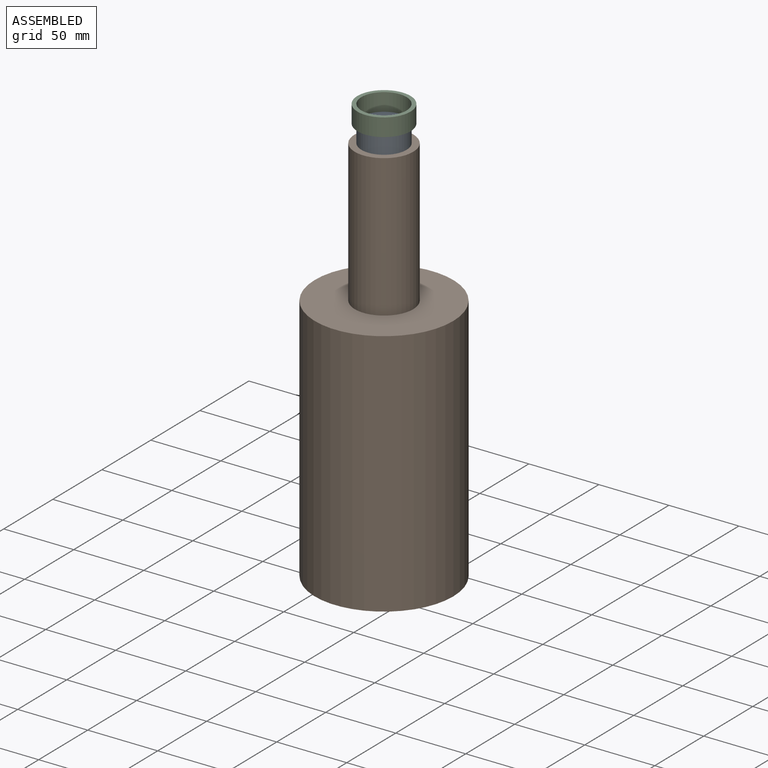
[diagram: assembled view]
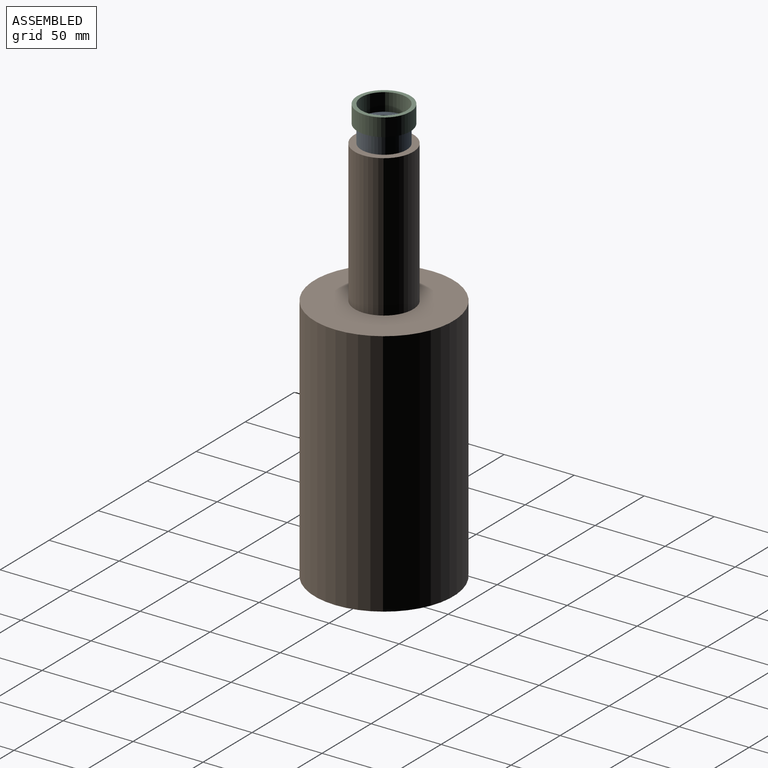
[diagram: assembled view, second angle]
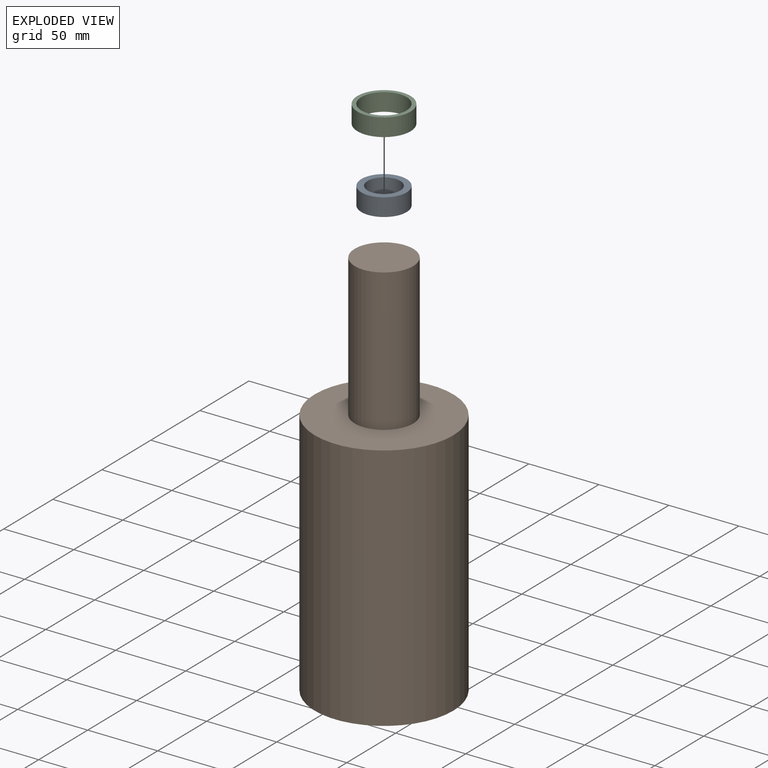
[diagram: exploded view]
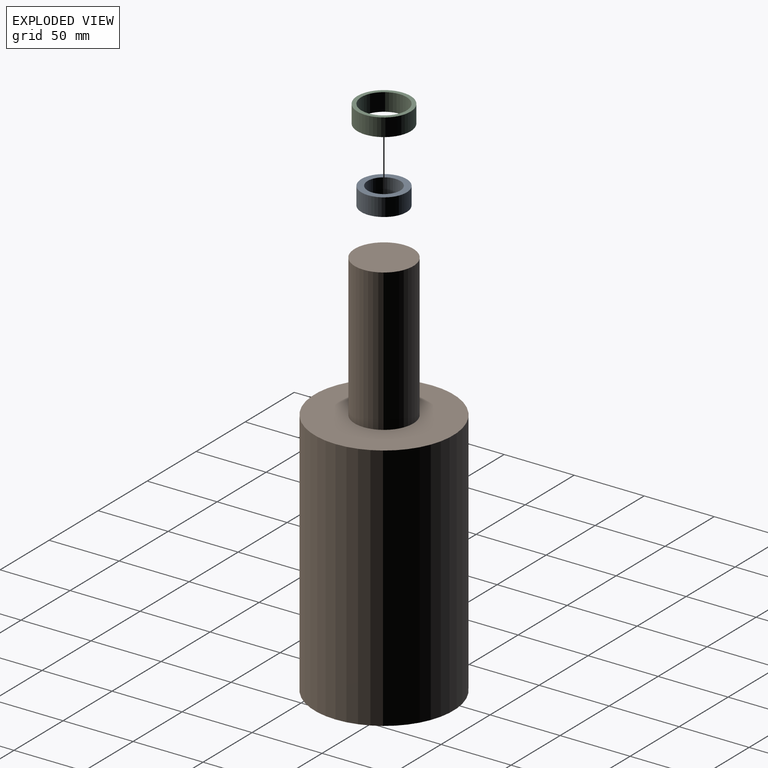
[diagram: exploded view, second angle]
ASSEMBLY  parts=3 mates=2
PART A: 4 faces, bbox 32.3x32.3x12.7 mm
  f0: cylinder r=11.65mm len=23.31mm, axis (0,0,-1), area 930mm2, adj f2,f3
  f1: cylinder r=16.16mm len=32.33mm, axis (0,0,-1), area 1289.7mm2, adj f2,f3
  f2: plane 32.33x32.33mm, normal (0,0,1), area 393.9mm2, adj f0,f1
  f3: plane 32.33x32.33mm, normal (0,0,-1), area 393.9mm2, adj f0,f1
PART B: 5 faces, bbox 99x99x279.4 mm
  f0: cylinder r=49.51mm len=177.8mm, axis (0,0,-1), area 55309.4mm2, adj f1,f2
  f1: plane 99.02x99.02mm, normal (0,0,1), area 6326.4mm2, adj f0,f3
  f2: plane 99.02x99.02mm, normal (0,0,-1), area 7700.6mm2, adj f0
  f3: cylinder r=20.91mm len=101.6mm, axis (0,0,-1), area 13351.5mm2, adj f1,f4
  f4: plane 41.83x41.83mm, normal (0,0,1), area 1374.2mm2, adj f3
PART C: 4 faces, bbox 37.9x37.9x12.7 mm
  f0: cylinder r=16.16mm len=32.33mm, axis (0,0,-1), area 1289.7mm2, adj f2,f3
  f1: cylinder r=18.97mm len=37.94mm, axis (0,0,-1), area 1513.6mm2, adj f2,f3
  f2: plane 37.94x37.94mm, normal (0,0,1), area 309.7mm2, adj f0,f1
  f3: plane 37.94x37.94mm, normal (0,0,-1), area 309.7mm2, adj f0,f1
PLACE A t=(-33.46,35.84,222.43)mm
PLACE B t=(-33.46,35.84,-56.97)mm
PLACE C t=(-33.46,35.84,222.43)mm
MATE fastened A.f0 <-> B.f3  axis (0,0,-1) through (-33.46,35.84,222.43)mm
MATE fastened C.f0 <-> A.f1  axis (0,0,-1) through (-33.46,35.84,235.13)mm
